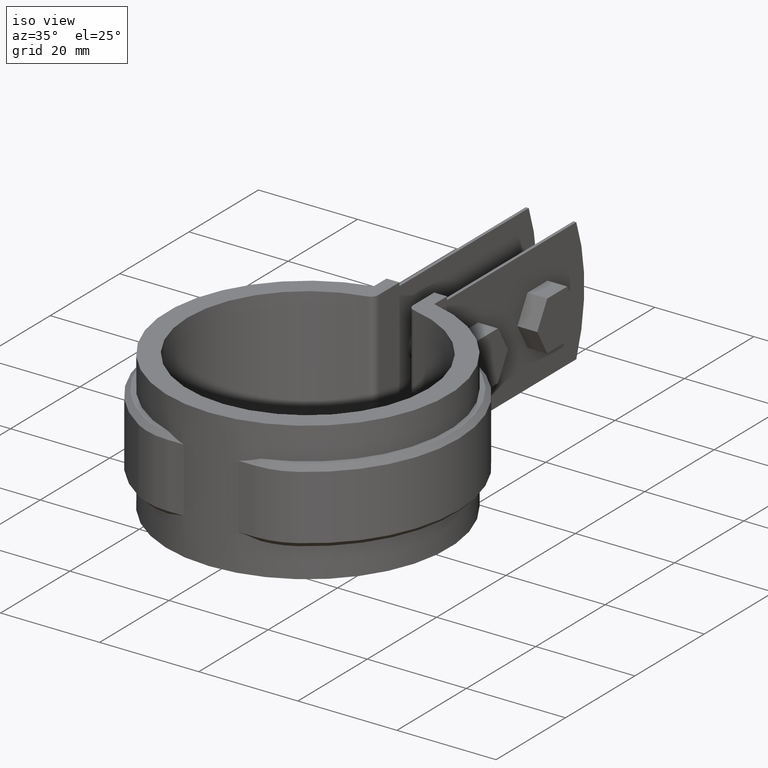
[diagram: clean part render]
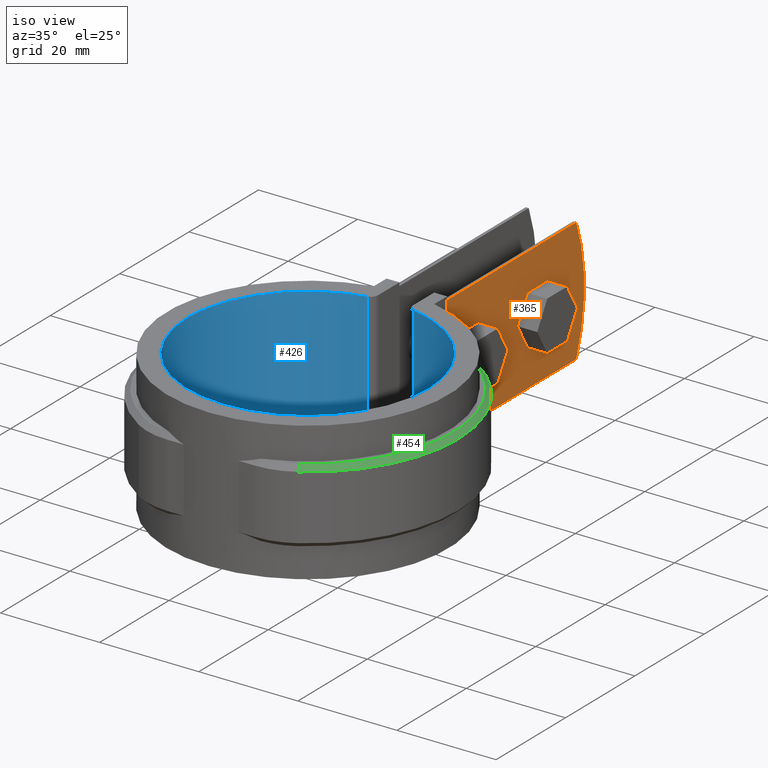
[diagram: same view with three faces highlighted in distinct colors, each labeled with its STEP entity id]
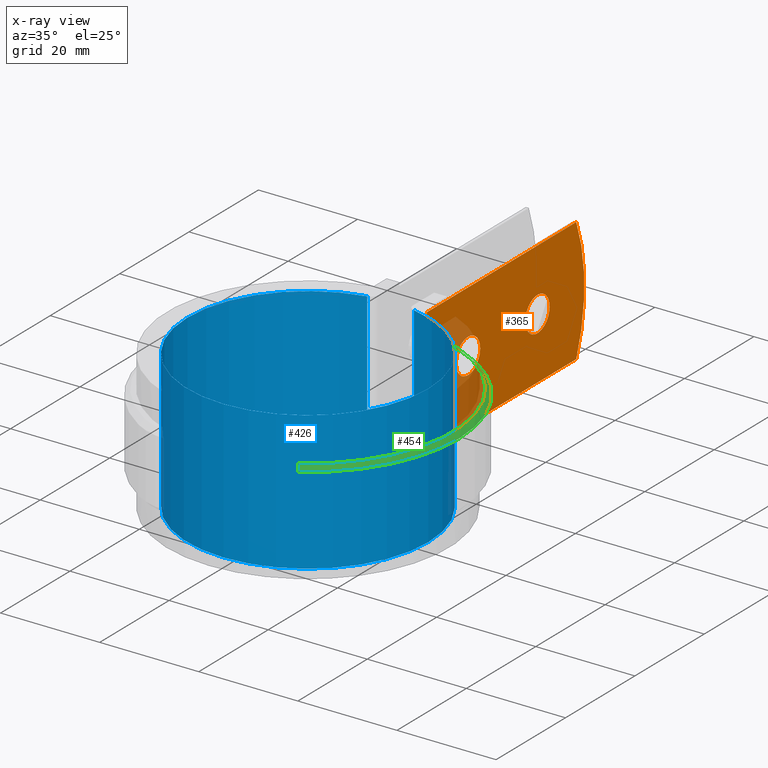
[diagram: x-ray of the same camera — body ghosted, the three highlighted faces saturated]
A machine part, iso view with three faces highlighted in distinct colors.
The next image is the same camera in x-ray (body ghosted, the three faces saturated) — at least one of them is partly hidden behind the body in this view.
Their STEP definitions:

[orange] entity #365 — the highlighted planar face has unit normal (-1, 0, 0).
#365 = ADVANCED_FACE( '', ( #639, #640, #641 ), #642, .F. );
#639 = FACE_BOUND( '', #1415, .T. );
#640 = FACE_BOUND( '', #1416, .T. );
#641 = FACE_OUTER_BOUND( '', #1417, .T. );
#642 = PLANE( '', #1418 );
#1415 = EDGE_LOOP( '', ( #3060 ) );
#1416 = EDGE_LOOP( '', ( #3061 ) );
#1417 = EDGE_LOOP( '', ( #3062, #3063, #3064, #3065, #3066, #3067 ) );
#1418 = AXIS2_PLACEMENT_3D( '', #3068, #3069, #3070 );
#3060 = ORIENTED_EDGE( '', *, *, #5329, .F. );
#3061 = ORIENTED_EDGE( '', *, *, #5330, .F. );
#3062 = ORIENTED_EDGE( '', *, *, #5214, .F. );
#3063 = ORIENTED_EDGE( '', *, *, #5313, .T. );
#3064 = ORIENTED_EDGE( '', *, *, #5319, .T. );
#3065 = ORIENTED_EDGE( '', *, *, #5331, .F. );
#3066 = ORIENTED_EDGE( '', *, *, #5190, .F. );
#3067 = ORIENTED_EDGE( '', *, *, #5288, .T. );
#3068 = CARTESIAN_POINT( '', ( 5.10000000000000, 27.0294284068310, 0.000000000000000 ) );
#3069 = DIRECTION( '', ( -1.00000000000000, 6.12303176911189E-017, 0.000000000000000 ) );
#3070 = DIRECTION( '', ( 6.12303176911189E-017, 1.00000000000000, 0.000000000000000 ) );
#5190 = EDGE_CURVE( '', #5788, #5790, #5791, .T. );
#5214 = EDGE_CURVE( '', #5833, #5827, #5835, .T. );
#5288 = EDGE_CURVE( '', #5788, #5827, #5959, .T. );
#5313 = EDGE_CURVE( '', #5833, #5995, #5997, .T. );
#5319 = EDGE_CURVE( '', #5995, #6005, #6007, .T. );
#5329 = EDGE_CURVE( '', #6017, #6017, #6018, .F. );
#5330 = EDGE_CURVE( '', #6019, #6019, #6020, .F. );
#5331 = EDGE_CURVE( '', #5790, #6005, #6021, .T. );
#5788 = VERTEX_POINT( '', #6907 );
#5790 = VERTEX_POINT( '', #6909 );
#5791 = LINE( '', #6910, #6911 );
#5827 = VERTEX_POINT( '', #7018 );
#5833 = VERTEX_POINT( '', #7089 );
#5835 = B_SPLINE_CURVE_WITH_KNOTS( '', 3, ( #7104, #7105, #7106, #7107, #7108, #7109, #7110, #7111, #7112, #7113, #7114, #7115, #7116, #7117, #7118, #7119 ), .UNSPECIFIED., .F., .F., ( 4, 2, 2, 2, 2, 2, 2, 4 ), ( 2.19427091786044E-017, 0.00173962475807892, 0.00260943713711837, 0.00347924951615782, 0.00434906189519726, 0.00521887427423671, 0.00608868665327616, 0.00695849903231561 ), .UNSPECIFIED. );
#5959 = LINE( '', #7794, #7795 );
#5995 = VERTEX_POINT( '', #7878 );
#5997 = LINE( '', #7880, #7881 );
#6005 = VERTEX_POINT( '', #7890 );
#6007 = LINE( '', #7893, #7894 );
#6017 = VERTEX_POINT( '', #7929 );
#6018 = CIRCLE( '', #7930, 3.50000000000000 );
#6019 = VERTEX_POINT( '', #7931 );
#6020 = CIRCLE( '', #7932, 3.50000000000000 );
#6021 = CIRCLE( '', #7933, 35.0000000000000 );
#6907 = CARTESIAN_POINT( '', ( 5.10000000000000, 27.0294284068310, 0.000000000000000 ) );
#6909 = CARTESIAN_POINT( '', ( 5.09999999999998, 70.0962692321626, 0.000000000000000 ) );
#6910 = CARTESIAN_POINT( '', ( 5.10000000000000, 27.0294284068310, 0.000000000000000 ) );
#6911 = VECTOR( '', #10407, 1000.00000000000 );
#7018 = CARTESIAN_POINT( '', ( 5.10000000000000, 27.0294284068310, -9.16495541532966 ) );
#7089 = CARTESIAN_POINT( '', ( 5.10000000000000, 27.0294284068310, -15.8350445846703 ) );
#7104 = CARTESIAN_POINT( '', ( 5.10000000000000, 27.0294284068310, -15.8350445846703 ) );
#7105 = CARTESIAN_POINT( '', ( 5.10000000000000, 27.3280357223781, -15.3281348797373 ) );
#7106 = CARTESIAN_POINT( '', ( 5.10000000000000, 27.5518454738581, -14.7928422768533 ) );
#7107 = CARTESIAN_POINT( '', ( 5.10000000000000, 27.7818550542833, -13.9497922326326 ) );
#7108 = CARTESIAN_POINT( '', ( 5.09999999999999, 27.8407126484381, -13.6600389839109 ) );
#7109 = CARTESIAN_POINT( '', ( 5.09999999999999, 27.9185448150091, -13.0820899860032 ) );
#7110 = CARTESIAN_POINT( '', ( 5.09999999999999, 27.9381203555430, -12.7926270929842 ) );
#7111 = CARTESIAN_POINT( '', ( 5.09999999999999, 27.9383608286158, -12.2127187228343 ) );
#7112 = CARTESIAN_POINT( '', ( 5.10000000000001, 27.9190234527081, -11.9222731874098 ) );
#7113 = CARTESIAN_POINT( '', ( 5.10000000000001, 27.8408778544820, -11.3403853851151 ) );
#7114 = CARTESIAN_POINT( '', ( 5.10000000000001, 27.7825470633440, -11.0534594073793 ) );
#7115 = CARTESIAN_POINT( '', ( 5.10000000000001, 27.6300707180545, -10.4931705473760 ) );
#7116 = CARTESIAN_POINT( '', ( 5.10000000000000, 27.5357927160773, -10.2188332903915 ) );
#7117 = CARTESIAN_POINT( '', ( 5.10000000000000, 27.3105052374005, -9.68198294753640 ) );
#7118 = CARTESIAN_POINT( '', ( 5.10000000000000, 27.1787288870378, -9.41840487362348 ) );
#7119 = CARTESIAN_POINT( '', ( 5.10000000000000, 27.0294284068310, -9.16495541532972 ) );
#7794 = CARTESIAN_POINT( '', ( 5.10000000000000, 27.0294284068310, 0.000000000000000 ) );
#7795 = VECTOR( '', #10478, 1000.00000000000 );
#7878 = CARTESIAN_POINT( '', ( 5.10000000000000, 27.0294284068310, -25.0000000000000 ) );
#7880 = CARTESIAN_POINT( '', ( 5.10000000000000, 27.0294284068310, 0.000000000000000 ) );
#7881 = VECTOR( '', #10513, 1000.00000000000 );
#7890 = CARTESIAN_POINT( '', ( 5.09999999999998, 70.0962692321626, -25.0000000000000 ) );
#7893 = CARTESIAN_POINT( '', ( 5.10000000000000, 27.0294284068310, -25.0000000000000 ) );
#7894 = VECTOR( '', #10525, 1000.00000000000 );
#7929 = CARTESIAN_POINT( '', ( 5.10000000000001, 55.4045271556075, -12.5000000000000 ) );
#7930 = AXIS2_PLACEMENT_3D( '', #10537, #10538, #10539 );
#7931 = CARTESIAN_POINT( '', ( 5.10000000000001, 35.4045271556075, -12.5000000000000 ) );
#7932 = AXIS2_PLACEMENT_3D( '', #10540, #10541, #10542 );
#7933 = AXIS2_PLACEMENT_3D( '', #10543, #10544, #10545 );
#10407 = DIRECTION( '', ( 6.12303176911189E-017, 1.00000000000000, 0.000000000000000 ) );
#10478 = DIRECTION( '', ( 0.000000000000000, 0.000000000000000, -1.00000000000000 ) );
#10513 = DIRECTION( '', ( 0.000000000000000, 0.000000000000000, -1.00000000000000 ) );
#10525 = DIRECTION( '', ( 6.12303176911189E-017, 1.00000000000000, 0.000000000000000 ) );
#10537 = CARTESIAN_POINT( '', ( 5.10000000000001, 58.9045271556075, -12.5000000000000 ) );
#10538 = DIRECTION( '', ( -1.00000000000000, 6.12303176911189E-017, 0.000000000000000 ) );
#10539 = DIRECTION( '', ( -6.12303176911189E-017, -1.00000000000000, 0.000000000000000 ) );
#10540 = CARTESIAN_POINT( '', ( 5.10000000000001, 38.9045271556075, -12.5000000000000 ) );
#10541 = DIRECTION( '', ( -1.00000000000000, 6.12303176911189E-017, 0.000000000000000 ) );
#10542 = DIRECTION( '', ( -6.12303176911189E-017, -1.00000000000000, 0.000000000000000 ) );
#10543 = CARTESIAN_POINT( '', ( 5.10000000000001, 37.4045271556075, -12.5000000000000 ) );
#10544 = DIRECTION( '', ( -1.00000000000000, 6.12303176911189E-017, 0.000000000000000 ) );
#10545 = DIRECTION( '', ( -6.12303176911189E-017, -1.00000000000000, 0.000000000000000 ) );

[blue] entity #426 — the highlighted cylindrical surface (partial cylindrical patch) has radius 24.3 mm, axis along (0, 0, -1).
#426 = ADVANCED_FACE( '', ( #768 ), #769, .F. );
#768 = FACE_OUTER_BOUND( '', #1831, .T. );
#769 = CYLINDRICAL_SURFACE( '', #1832, 24.3000000000000 );
#1831 = EDGE_LOOP( '', ( #4304, #4305, #4306, #4307 ) );
#1832 = AXIS2_PLACEMENT_3D( '', #4308, #4309, #4310 );
#4304 = ORIENTED_EDGE( '', *, *, #5528, .F. );
#4305 = ORIENTED_EDGE( '', *, *, #5525, .T. );
#4306 = ORIENTED_EDGE( '', *, *, #5522, .T. );
#4307 = ORIENTED_EDGE( '', *, *, #5529, .T. );
#4308 = CARTESIAN_POINT( '', ( 0.000000000000000, 0.000000000000000, -96.6314213318892 ) );
#4309 = DIRECTION( '', ( 0.000000000000000, 0.000000000000000, -1.00000000000000 ) );
#4310 = DIRECTION( '', ( -1.00000000000000, 0.000000000000000, 0.000000000000000 ) );
#5522 = EDGE_CURVE( '', #6343, #6341, #6344, .F. );
#5525 = EDGE_CURVE( '', #6348, #6343, #6349, .T. );
#5528 = EDGE_CURVE( '', #6348, #6353, #6354, .F. );
#5529 = EDGE_CURVE( '', #6341, #6353, #6355, .F. );
#6341 = VERTEX_POINT( '', #9746 );
#6343 = VERTEX_POINT( '', #9748 );
#6344 = CIRCLE( '', #9749, 24.3000000000000 );
#6348 = VERTEX_POINT( '', #9754 );
#6349 = LINE( '', #9755, #9756 );
#6353 = VERTEX_POINT( '', #9761 );
#6354 = CIRCLE( '', #9762, 24.3000000000000 );
#6355 = LINE( '', #9763, #9764 );
#9746 = CARTESIAN_POINT( '', ( 4.70930232558140, 23.8393051829594, 1.50000000000000 ) );
#9748 = CARTESIAN_POINT( '', ( -4.70930232558139, 23.8393051829594, 1.50000000000000 ) );
#9749 = AXIS2_PLACEMENT_3D( '', #10696, #10697, #10698 );
#9754 = CARTESIAN_POINT( '', ( -4.70930232558139, 23.8393051829594, -26.5000000000000 ) );
#9755 = CARTESIAN_POINT( '', ( -4.70930232558139, 23.8393051829594, -96.6314213318892 ) );
#9756 = VECTOR( '', #10703, 1000.00000000000 );
#9761 = CARTESIAN_POINT( '', ( 4.70930232558140, 23.8393051829594, -26.5000000000000 ) );
#9762 = AXIS2_PLACEMENT_3D( '', #10708, #10709, #10710 );
#9763 = CARTESIAN_POINT( '', ( 4.70930232558140, 23.8393051829594, -96.6314213318892 ) );
#9764 = VECTOR( '', #10711, 1000.00000000000 );
#10696 = CARTESIAN_POINT( '', ( 0.000000000000000, 0.000000000000000, 1.50000000000000 ) );
#10697 = DIRECTION( '', ( 0.000000000000000, 0.000000000000000, -1.00000000000000 ) );
#10698 = DIRECTION( '', ( -1.00000000000000, 0.000000000000000, 0.000000000000000 ) );
#10703 = DIRECTION( '', ( 0.000000000000000, 0.000000000000000, 1.00000000000000 ) );
#10708 = CARTESIAN_POINT( '', ( 0.000000000000000, 0.000000000000000, -26.5000000000000 ) );
#10709 = DIRECTION( '', ( 0.000000000000000, 0.000000000000000, -1.00000000000000 ) );
#10710 = DIRECTION( '', ( -1.00000000000000, 0.000000000000000, 0.000000000000000 ) );
#10711 = DIRECTION( '', ( 0.000000000000000, 0.000000000000000, 1.00000000000000 ) );

[green] entity #454 — the highlighted conical surface has half-angle 45 deg.
#454 = ADVANCED_FACE( '', ( #824 ), #825, .T. );
#824 = FACE_OUTER_BOUND( '', #1914, .T. );
#825 = CONICAL_SURFACE( '', #1915, 30.3950000000000, 0.785398163397448 );
#1914 = EDGE_LOOP( '', ( #4510, #4511, #4512, #4513 ) );
#1915 = AXIS2_PLACEMENT_3D( '', #4514, #4515, #4516 );
#4510 = ORIENTED_EDGE( '', *, *, #5588, .F. );
#4511 = ORIENTED_EDGE( '', *, *, #5589, .F. );
#4512 = ORIENTED_EDGE( '', *, *, #5585, .F. );
#4513 = ORIENTED_EDGE( '', *, *, #5580, .F. );
#4514 = CARTESIAN_POINT( '', ( -8.67361737988404E-016, -3.46944695195361E-015, -6.00000000000000 ) );
#4515 = DIRECTION( '', ( 0.000000000000000, 0.000000000000000, -1.00000000000000 ) );
#4516 = DIRECTION( '', ( -1.00000000000000, 0.000000000000000, 0.000000000000000 ) );
#5580 = EDGE_CURVE( '', #6436, #6438, #6439, .F. );
#5585 = EDGE_CURVE( '', #6438, #6445, #6446, .T. );
#5588 = EDGE_CURVE( '', #6450, #6436, #6451, .T. );
#5589 = EDGE_CURVE( '', #6445, #6450, #6452, .T. );
#6436 = VERTEX_POINT( '', #9898 );
#6438 = VERTEX_POINT( '', #9901 );
#6439 = CIRCLE( '', #9902, 30.3950000000000 );
#6445 = VERTEX_POINT( '', #9910 );
#6446 = LINE( '', #9911, #9912 );
#6450 = VERTEX_POINT( '', #9919 );
#6451 = B_SPLINE_CURVE_WITH_KNOTS( '', 3, ( #9920, #9921, #9922, #9923 ), .UNSPECIFIED., .F., .F., ( 4, 4 ), ( 0.000000000000000, 0.00142949551719674 ), .UNSPECIFIED. );
#6452 = CIRCLE( '', #9924, 29.3950000000000 );
#9898 = CARTESIAN_POINT( '', ( 6.09999999999998, 29.7766019720183, -6.00000000000000 ) );
#9901 = CARTESIAN_POINT( '', ( 16.0865111739769, -25.7891485561179, -6.00000000000000 ) );
#9902 = AXIS2_PLACEMENT_3D( '', #10794, #10795, #10796 );
#9910 = CARTESIAN_POINT( '', ( 15.5572625747343, -24.9406817505210, -5.00000000000000 ) );
#9911 = CARTESIAN_POINT( '', ( 16.0865111739768, -25.7891485561179, -6.00000000000000 ) );
#9912 = VECTOR( '', #10805, 1000.00000000000 );
#9919 = CARTESIAN_POINT( '', ( 6.09999999999998, 28.7551043294925, -5.00000000000000 ) );
#9920 = CARTESIAN_POINT( '', ( 6.09999999999998, 28.7551043294925, -5.00000000000000 ) );
#9921 = CARTESIAN_POINT( '', ( 6.09999999999998, 29.0957267367249, -5.33320744537946 ) );
#9922 = CARTESIAN_POINT( '', ( 6.09999999999998, 29.4362218572914, -5.66654505032372 ) );
#9923 = CARTESIAN_POINT( '', ( 6.09999999999998, 29.7766019720182, -6.00000000000000 ) );
#9924 = AXIS2_PLACEMENT_3D( '', #10809, #10810, #10811 );
#10794 = CARTESIAN_POINT( '', ( -8.67361737988404E-016, -3.46944695195361E-015, -6.00000000000000 ) );
#10795 = DIRECTION( '', ( 0.000000000000000, 0.000000000000000, 1.00000000000000 ) );
#10796 = DIRECTION( '', ( 1.00000000000000, 0.000000000000000, 0.000000000000000 ) );
#10805 = DIRECTION( '', ( -0.374235273457877, 0.599956631849259, 0.707106781186548 ) );
#10809 = CARTESIAN_POINT( '', ( -8.67361737988404E-016, -3.46944695195361E-015, -5.00000000000000 ) );
#10810 = DIRECTION( '', ( 0.000000000000000, 0.000000000000000, 1.00000000000000 ) );
#10811 = DIRECTION( '', ( 1.00000000000000, 0.000000000000000, 0.000000000000000 ) );